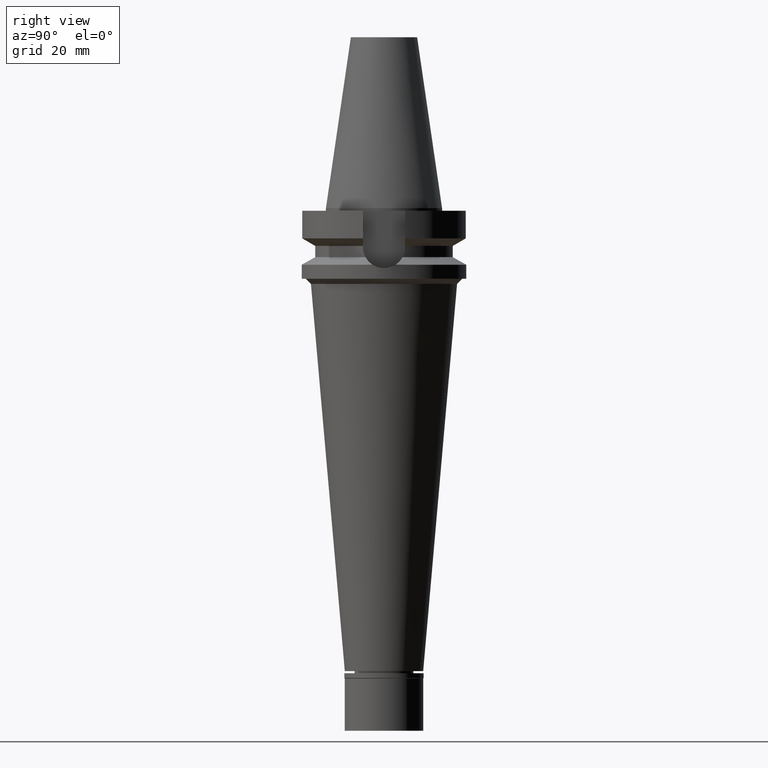
[diagram: clean part render]
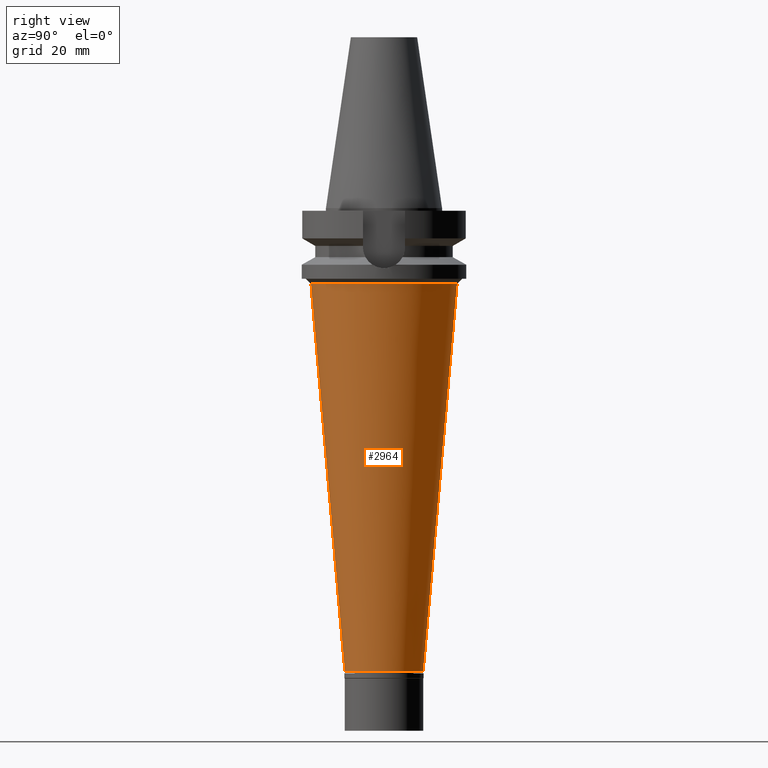
[diagram: same view with one face highlighted and labeled with its STEP entity id]
A machine part, right view. The second image highlights one B-rep face of the part: STEP entity #2964.
In plain terms, the highlighted conical surface has half-angle 5 deg.
Its self-contained STEP definition (entity closure, byte-faithful):
#29 = VECTOR ( 'NONE', #2312, 1000.000000000000000 ) ;
#115 = DIRECTION ( 'NONE',  ( 0.0000000000000000000, -1.000000000000000000, 0.0000000000000000000 ) ) ;
#141 = CIRCLE ( 'NONE', #1921, 15.00000000000000000 ) ;
#195 = AXIS2_PLACEMENT_3D ( 'NONE', #561, #1339, #115 ) ;
#253 = DIRECTION ( 'NONE',  ( 0.0000000000000000000, 0.0000000000000000000, 1.000000000000000000 ) ) ;
#270 = EDGE_LOOP ( 'NONE', ( #2842, #1152, #567, #875 ) ) ;
#287 = CIRCLE ( 'NONE', #195, 27.96581993454000070 ) ;
#304 = CONICAL_SURFACE ( 'NONE', #2891, 21.48290996726999680, 0.08726646259969973729 ) ;
#365 = CARTESIAN_POINT ( 'NONE',  ( 0.0000000000000000000, 0.0000000000000000000, -103.0999999999999943 ) ) ;
#523 = EDGE_CURVE ( 'NONE', #2916, #1992, #1389, .T. ) ;
#561 = CARTESIAN_POINT ( 'NONE',  ( 0.0000000000000000000, 0.0000000000000000000, -29.00000000000000000 ) ) ;
#567 = ORIENTED_EDGE ( 'NONE', *, *, #1164, .T. ) ;
#857 = EDGE_CURVE ( 'NONE', #932, #2186, #1740, .T. ) ;
#875 = ORIENTED_EDGE ( 'NONE', *, *, #857, .F. ) ;
#877 = CARTESIAN_POINT ( 'NONE',  ( 0.0000000000000000000, -15.00000000000000000, -177.1999999999999886 ) ) ;
#892 = EDGE_CURVE ( 'NONE', #2916, #932, #287, .T. ) ;
#932 = VERTEX_POINT ( 'NONE', #1868 ) ;
#1152 = ORIENTED_EDGE ( 'NONE', *, *, #523, .T. ) ;
#1164 = EDGE_CURVE ( 'NONE', #1992, #2186, #141, .T. ) ;
#1339 = DIRECTION ( 'NONE',  ( 0.0000000000000000000, 0.0000000000000000000, 1.000000000000000000 ) ) ;
#1389 = LINE ( 'NONE', #2365, #29 ) ;
#1535 = DIRECTION ( 'NONE',  ( 0.0000000000000000000, 0.0000000000000000000, 1.000000000000000000 ) ) ;
#1573 = DIRECTION ( 'NONE',  ( 0.0000000000000000000, 1.000000000000000000, 0.0000000000000000000 ) ) ;
#1740 = LINE ( 'NONE', #2211, #2636 ) ;
#1868 = CARTESIAN_POINT ( 'NONE',  ( 0.0000000000000000000, 27.96581993454000070, -29.00000000000000000 ) ) ;
#1921 = AXIS2_PLACEMENT_3D ( 'NONE', #1949, #253, #1961 ) ;
#1949 = CARTESIAN_POINT ( 'NONE',  ( 0.0000000000000000000, 0.0000000000000000000, -177.1999999999999886 ) ) ;
#1961 = DIRECTION ( 'NONE',  ( 0.0000000000000000000, -1.000000000000000000, 0.0000000000000000000 ) ) ;
#1992 = VERTEX_POINT ( 'NONE', #877 ) ;
#1997 = CARTESIAN_POINT ( 'NONE',  ( 0.0000000000000000000, -27.96581993454000070, -29.00000000000000000 ) ) ;
#2186 = VERTEX_POINT ( 'NONE', #2628 ) ;
#2211 = CARTESIAN_POINT ( 'NONE',  ( 0.0000000000000000000, 27.96581993454000070, -29.00000000000000000 ) ) ;
#2312 = DIRECTION ( 'NONE',  ( 0.0000000000000000000, 0.08715574274765398866, -0.9961946980917458783 ) ) ;
#2365 = CARTESIAN_POINT ( 'NONE',  ( 0.0000000000000000000, -27.96581993454000070, -29.00000000000000000 ) ) ;
#2490 = DIRECTION ( 'NONE',  ( 0.0000000000000000000, -0.08715574274765398866, -0.9961946980917458783 ) ) ;
#2628 = CARTESIAN_POINT ( 'NONE',  ( 0.0000000000000000000, 15.00000000000000000, -177.1999999999999886 ) ) ;
#2636 = VECTOR ( 'NONE', #2490, 1000.000000000000000 ) ;
#2760 = FACE_OUTER_BOUND ( 'NONE', #270, .T. ) ;
#2842 = ORIENTED_EDGE ( 'NONE', *, *, #892, .F. ) ;
#2891 = AXIS2_PLACEMENT_3D ( 'NONE', #365, #1535, #1573 ) ;
#2916 = VERTEX_POINT ( 'NONE', #1997 ) ;
#2964 = ADVANCED_FACE ( 'NONE', ( #2760 ), #304, .T. ) ;